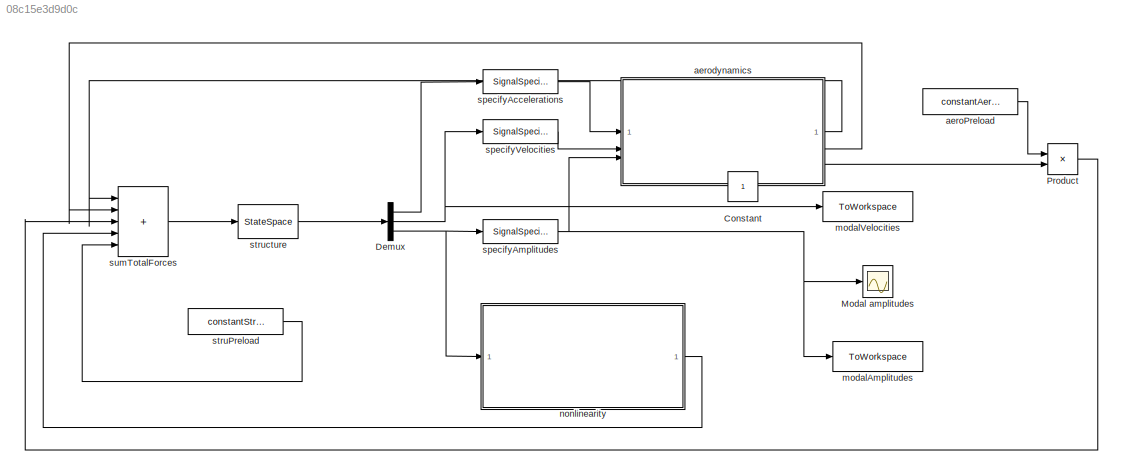
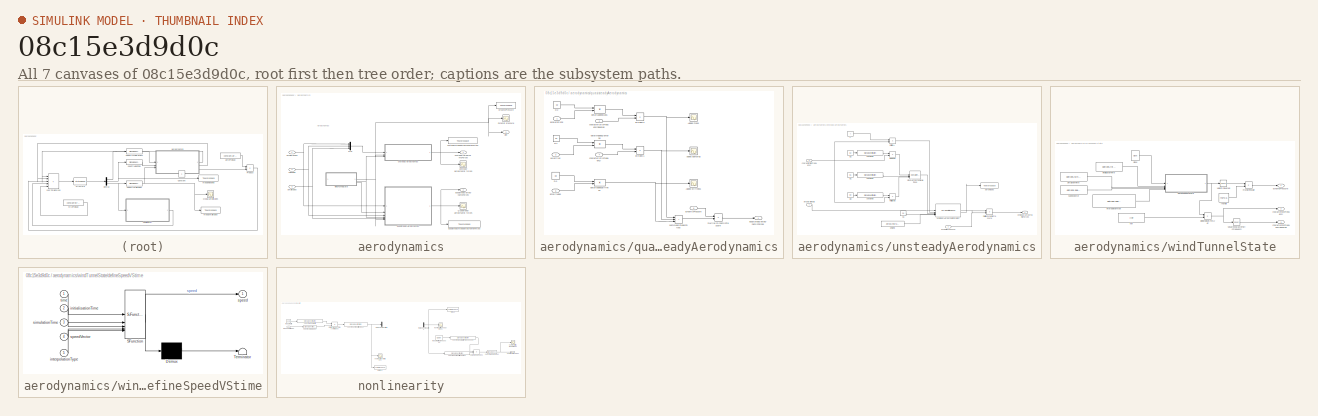
[diagram: thumbnail index - all 7 canvases of the model, root first then tree order]
MODEL slx_08c15e3d9d0c
KIND model
CONFIG AbsTol = auto
CONFIG EnableMultiTasking = off
CONFIG FixedStep = 0.00001
CONFIG MaxStep = 0.001
CONFIG MinStep = auto
CONFIG RelTol = 1e-5
CONFIG SampleTimeConstraint = Unconstrained
CONFIG SolverName = VariableStepAuto
CONFIG StartTime = 0.0
CONFIG StopTime = 100
BLOCK [Constant] Constant
  IOType = siggen
BLOCK [Demux] Demux
  Outputs = 3
BLOCK [Scope] Modal amplitudes
  Floating = off
  NumInputPorts = 1
  ScopeSpecificationString = Simulink.scopes.TimeScopeBlockCfg('CurrentConfiguration', extmgr.ConfigurationSet(extmgr.Configuration('Core','General UI',true),extmgr.Configuration('Core','Source UI',true),extmgr.Configuration('Sources','WiredSimulink',true,'DataLoggingVariableName','Modes'),extmgr.Configuration('Visuals','Time Domain',true,'SerializedDisplays',{struct('MinYLimReal','-0.00024','MaxYLimReal','0.00019','YLabelRea...<+1993ch>
BLOCK [Product] Product
BLOCK [Constant] aeroPreload
  Value = constantAeroForce
BLOCK [SubSystem] aerodynamics
BLOCK [Scope] aerodynamics/Dynamic pressure
  Floating = off
  NumInputPorts = 1
  ScopeSpecificationString = Simulink.scopes.TimeScopeBlockCfg('CurrentConfiguration', extmgr.ConfigurationSet(extmgr.Configuration('Core','General UI',true),extmgr.Configuration('Core','Source UI',true),extmgr.Configuration('Sources','WiredSimulink',true,'DataLoggingVariableName','DynPressure'),extmgr.Configuration('Visuals','Time Domain',true,'SerializedDisplays',{struct('MinYLimReal','104.01297','MaxYLimReal','335.13328','...<+1490ch>
BLOCK [Mux] aerodynamics/Mux
  DisplayOption = bar
  Inputs = 3
BLOCK [Scope] aerodynamics/Quasisteady aerodynamic forces
  Floating = off
  NumInputPorts = 1
  ScopeSpecificationString = Simulink.scopes.TimeScopeBlockCfg('CurrentConfiguration', extmgr.ConfigurationSet(extmgr.Configuration('Core','General UI',true),extmgr.Configuration('Core','Source UI',true),extmgr.Configuration('Sources','WiredSimulink',true,'DataLoggingVariableName','QuasiSteadyAeroForces'),extmgr.Configuration('Visuals','Time Domain',true,'SerializedDisplays',{struct('MinYLimReal','-14305.59124','MaxYLimReal',...<+2057ch>
BLOCK [Scope] aerodynamics/Unsteady aerodynamic forces
  Floating = off
  NumInputPorts = 1
  ScopeSpecificationString = Simulink.scopes.TimeScopeBlockCfg('CurrentConfiguration', extmgr.ConfigurationSet(extmgr.Configuration('Core','General UI',true),extmgr.Configuration('Core','Source UI',true),extmgr.Configuration('Sources','WiredSimulink',true,'DataLoggingVariableName','UnsteadyAeroForces'),extmgr.Configuration('Visuals','Time Domain',true,'SerializedDisplays',{struct('MinYLimReal','-3.00375','MaxYLimReal','3.0336...<+2012ch>
BLOCK [Inport] aerodynamics/accelerations
BLOCK [Inport] aerodynamics/amplitudes
  Port = 3
BLOCK [ToWorkspace] aerodynamics/dynamicPressure
  FixptAsFi = on
  MaxDataPoints = inf
  SampleTime = -1
  Save2DSignal = 2-D array (concatenate along first dimension)
  SaveFormat = Structure
  VariableName = dynamicPressure
BLOCK [Outport] aerodynamics/qinf
  Port = 3
BLOCK [Outport] aerodynamics/quasisteadyAerodynamicForces
  Port = 2
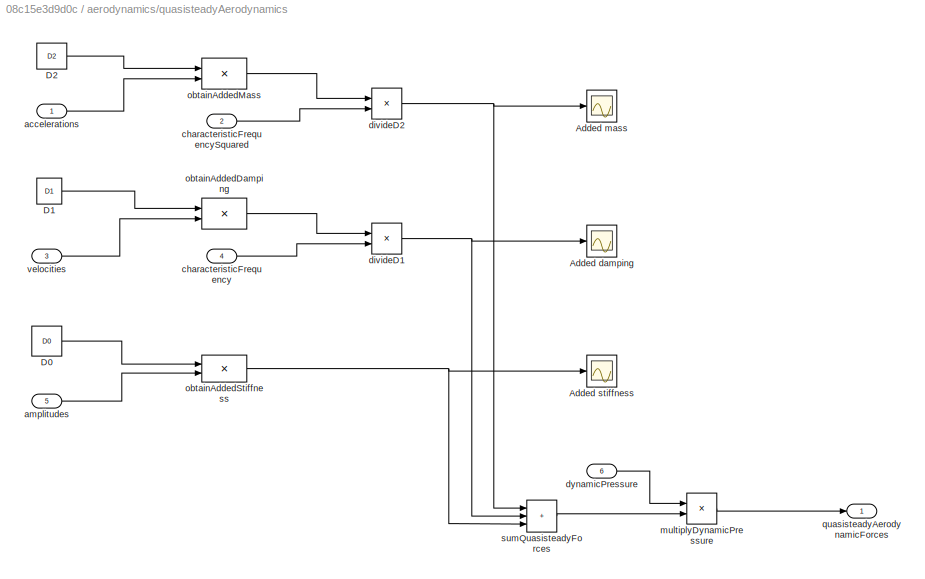
BLOCK [SubSystem] aerodynamics/quasisteadyAerodynamics
BLOCK [Scope] aerodynamics/quasisteadyAerodynamics/Added damping
  Floating = off
  NumInputPorts = 1
  ScopeSpecificationString = Simulink.scopes.TimeScopeBlockCfg('CurrentConfiguration', extmgr.ConfigurationSet(extmgr.Configuration('Core','General UI',true),extmgr.Configuration('Core','Source UI',true),extmgr.Configuration('Sources','WiredSimulink',true,'DataLoggingVariableName','D1AeroForces'),extmgr.Configuration('Visuals','Time Domain',true,'SerializedDisplays',{struct('MinYLimReal','-0.002','MaxYLimReal','0.00194','YLab...<+2005ch>
BLOCK [Scope] aerodynamics/quasisteadyAerodynamics/Added mass
  Floating = off
  NumInputPorts = 1
  ScopeSpecificationString = Simulink.scopes.TimeScopeBlockCfg('CurrentConfiguration', extmgr.ConfigurationSet(extmgr.Configuration('Core','General UI',true),extmgr.Configuration('Core','Source UI',true),extmgr.Configuration('Sources','WiredSimulink',true,'DataLoggingVariableName','D2AeroForces'),extmgr.Configuration('Visuals','Time Domain',true,'SerializedDisplays',{struct('MinYLimReal','-0.00214','MaxYLimReal','0.00214','YL...<+2027ch>
BLOCK [Scope] aerodynamics/quasisteadyAerodynamics/Added stiffness
  Floating = off
  NumInputPorts = 1
  ScopeSpecificationString = Simulink.scopes.TimeScopeBlockCfg('CurrentConfiguration', extmgr.ConfigurationSet(extmgr.Configuration('Core','General UI',true),extmgr.Configuration('Core','Source UI',true),extmgr.Configuration('Sources','WiredSimulink',true,'DataLoggingVariableName','D0AeroForces'),extmgr.Configuration('Visuals','Time Domain',true,'SerializedDisplays',{struct('MinYLimReal','-0.0077','MaxYLimReal','0.00785','YLa...<+2017ch>
BLOCK [Constant] aerodynamics/quasisteadyAerodynamics/D0
  Value = D0
BLOCK [Constant] aerodynamics/quasisteadyAerodynamics/D1
  Value = D1
BLOCK [Constant] aerodynamics/quasisteadyAerodynamics/D2
  Value = D2
BLOCK [Inport] aerodynamics/quasisteadyAerodynamics/accelerations
BLOCK [Inport] aerodynamics/quasisteadyAerodynamics/amplitudes
  Port = 5
BLOCK [Inport] aerodynamics/quasisteadyAerodynamics/characteristicFrequency
  Port = 4
BLOCK [Inport] aerodynamics/quasisteadyAerodynamics/characteristicFrequencySquared
  Port = 2
BLOCK [Product] aerodynamics/quasisteadyAerodynamics/divideD1
  Inputs = */
BLOCK [Product] aerodynamics/quasisteadyAerodynamics/divideD2
  Inputs = */
BLOCK [Inport] aerodynamics/quasisteadyAerodynamics/dynamicPressure
  Port = 6
BLOCK [Product] aerodynamics/quasisteadyAerodynamics/multiplyDynamicPressure
BLOCK [Product] aerodynamics/quasisteadyAerodynamics/obtainAddedDamping
  Multiplication = Matrix(*)
BLOCK [Product] aerodynamics/quasisteadyAerodynamics/obtainAddedMass
  Multiplication = Matrix(*)
BLOCK [Product] aerodynamics/quasisteadyAerodynamics/obtainAddedStiffness
  Multiplication = Matrix(*)
BLOCK [Outport] aerodynamics/quasisteadyAerodynamics/quasisteadyAerodynamicForces
BLOCK [Sum] aerodynamics/quasisteadyAerodynamics/sumQuasisteadyForces
  IconShape = rectangular
  Inputs = +++
BLOCK [Inport] aerodynamics/quasisteadyAerodynamics/velocities
  Port = 3
BLOCK [ToWorkspace] aerodynamics/quasisteadyModalAerodynamicForces
  FixptAsFi = on
  MaxDataPoints = inf
  SampleTime = -1
  Save2DSignal = 2-D array (concatenate along first dimension)
  SaveFormat = Structure
  VariableName = quasisteadyAerodynamicForces
BLOCK [Outport] aerodynamics/unsteadyAerodynamicForces
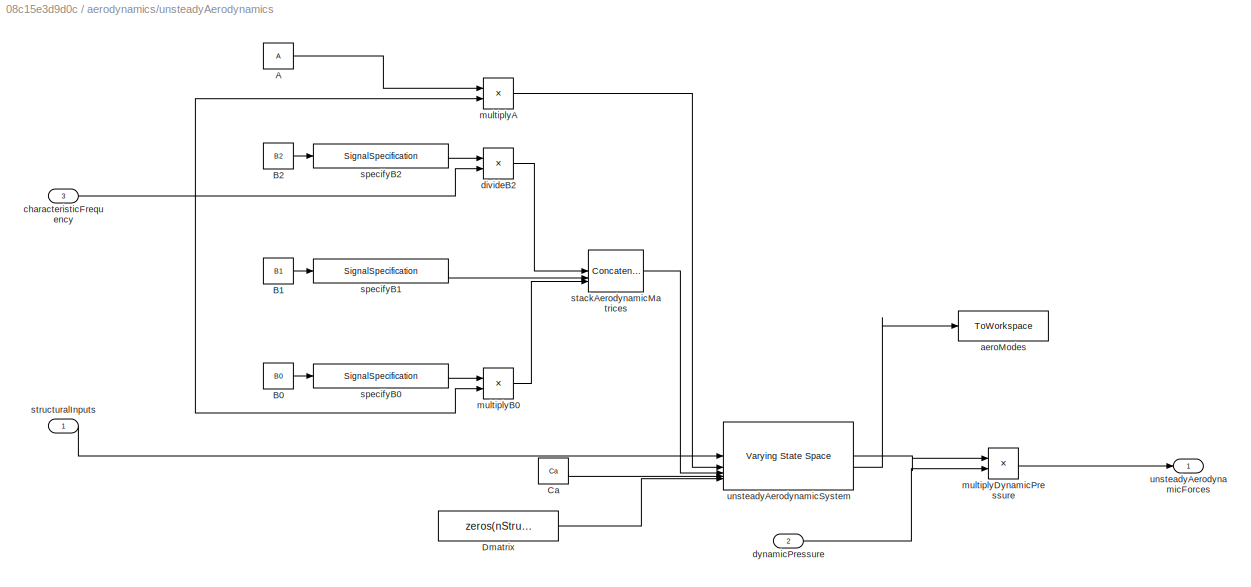
BLOCK [SubSystem] aerodynamics/unsteadyAerodynamics
BLOCK [Constant] aerodynamics/unsteadyAerodynamics/A
  Value = A
BLOCK [Constant] aerodynamics/unsteadyAerodynamics/B0
  Value = B0
BLOCK [Constant] aerodynamics/unsteadyAerodynamics/B1
  Value = B1
BLOCK [Constant] aerodynamics/unsteadyAerodynamics/B2
  Value = B2
BLOCK [Constant] aerodynamics/unsteadyAerodynamics/Ca
  Value = Ca
BLOCK [Constant] aerodynamics/unsteadyAerodynamics/Dmatrix
  Value = zeros(nStru,3*nStru)
BLOCK [ToWorkspace] aerodynamics/unsteadyAerodynamics/aeroModes
  FixptAsFi = on
  MaxDataPoints = 1
  SampleTime = -1
  Save2DSignal = 2-D array (concatenate along first dimension)
  SaveFormat = Structure
  VariableName = modesAero
BLOCK [Inport] aerodynamics/unsteadyAerodynamics/characteristicFrequency
  Port = 3
BLOCK [Product] aerodynamics/unsteadyAerodynamics/divideB2
  Inputs = */
BLOCK [Inport] aerodynamics/unsteadyAerodynamics/dynamicPressure
  Port = 2
BLOCK [Product] aerodynamics/unsteadyAerodynamics/multiplyA
  Inputs = **
BLOCK [Product] aerodynamics/unsteadyAerodynamics/multiplyB0
  Inputs = **
BLOCK [Product] aerodynamics/unsteadyAerodynamics/multiplyDynamicPressure
BLOCK [SignalSpecification] aerodynamics/unsteadyAerodynamics/specifyB0
  Dimensions = [nAero,nStru]
  VarSizeSig = No
BLOCK [SignalSpecification] aerodynamics/unsteadyAerodynamics/specifyB1
  Dimensions = [nAero,nStru]
  VarSizeSig = No
BLOCK [SignalSpecification] aerodynamics/unsteadyAerodynamics/specifyB2
  Dimensions = [nAero,nStru]
  VarSizeSig = No
BLOCK [Concatenate] aerodynamics/unsteadyAerodynamics/stackAerodynamicMatrices
  ConcatenateDimension = 2
  Mode = Multidimensional array
  NumInputs = 3
BLOCK [Inport] aerodynamics/unsteadyAerodynamics/structuralInputs
BLOCK [Outport] aerodynamics/unsteadyAerodynamics/unsteadyAerodynamicForces
BLOCK [Reference] aerodynamics/unsteadyAerodynamics/unsteadyAerodynamicSystem  REF=cstblocks/Linear Parameter Varying/Varying State Space
  SourceBlock = cstblocks/Linear Parameter Varying/Varying State Space
  SourceType = Varying State Space
BLOCK [ToWorkspace] aerodynamics/unsteadyModalAerodyanamicForces
  FixptAsFi = on
  MaxDataPoints = inf
  SampleTime = -1
  Save2DSignal = 2-D array (concatenate along first dimension)
  SaveFormat = Structure
  VariableName = unsteadyAerodynamicForces
BLOCK [Inport] aerodynamics/velocities
  Port = 2
BLOCK [SubSystem] aerodynamics/windTunnelState
BLOCK [Clock] aerodynamics/windTunnelState/Clock
BLOCK [Outport] aerodynamics/windTunnelState/characteristicFrequency
  Port = 2
BLOCK [Outport] aerodynamics/windTunnelState/characteristicFrequencySquared
  Port = 3
BLOCK [SubSystem] aerodynamics/windTunnelState/defineSpeedVStime
  ErrorFcn = Stateflow.Translate.translate
  PermitHierarchicalResolution = ExplicitOnly
  SFBlockType = MATLAB Function
  TreatAsAtomicUnit = on
BLOCK [Demux] aerodynamics/windTunnelState/defineSpeedVStime/ Demux 
  Outputs = 1
BLOCK [S-Function] aerodynamics/windTunnelState/defineSpeedVStime/ SFunction 
  EnableBusSupport = off
  FunctionName = sf_sfun
  PortCounts = [5 2]
  SFcnIsStateOwnerBlock = off
  SFunctionDeploymentMode = off
  Tag = Stateflow S-Function 2
BLOCK [Terminator] aerodynamics/windTunnelState/defineSpeedVStime/ Terminator 
BLOCK [Inport] aerodynamics/windTunnelState/defineSpeedVStime/initialisationTime
  Port = 2
BLOCK [Inport] aerodynamics/windTunnelState/defineSpeedVStime/interpolationType
  Port = 5
BLOCK [Inport] aerodynamics/windTunnelState/defineSpeedVStime/simulationTime
  Port = 3
BLOCK [Outport] aerodynamics/windTunnelState/defineSpeedVStime/speed
BLOCK [Inport] aerodynamics/windTunnelState/defineSpeedVStime/speedVector
  Port = 4
BLOCK [Inport] aerodynamics/windTunnelState/defineSpeedVStime/time
BLOCK [Product] aerodynamics/windTunnelState/divideVelocityForLref
  Inputs = */
BLOCK [Outport] aerodynamics/windTunnelState/dynamicPressure
BLOCK [Constant] aerodynamics/windTunnelState/initialisationTime
  Value = options.initialisationTime
BLOCK [Constant] aerodynamics/windTunnelState/interpolationType
  Value = options.speedInterpolationType
BLOCK [Constant] aerodynamics/windTunnelState/lref
  Value = lref
BLOCK [Product] aerodynamics/windTunnelState/mutiplyRhoHalf
BLOCK [Constant] aerodynamics/windTunnelState/rhoHalf
  Value = rho*0.5
BLOCK [Constant] aerodynamics/windTunnelState/simulationTime
  Value = options.simulationTime
BLOCK [Constant] aerodynamics/windTunnelState/speedVector
  Value = options.speedVector
BLOCK [Math] aerodynamics/windTunnelState/squareCharacteristicFrequency
  Operator = square
BLOCK [Math] aerodynamics/windTunnelState/velocitySquared
  Operator = square
BLOCK [ToWorkspace] modalAmplitudes
  FixptAsFi = on
  MaxDataPoints = inf
  SampleTime = -1
  Save2DSignal = 2-D array (concatenate along first dimension)
  SaveFormat = Structure
  VariableName = modes
BLOCK [ToWorkspace] modalVelocities
  FixptAsFi = on
  MaxDataPoints = 1
  SampleTime = -1
  Save2DSignal = 2-D array (concatenate along first dimension)
  SaveFormat = Structure
  VariableName = modesVelocity
BLOCK [SubSystem] nonlinearity
BLOCK [Scope] nonlinearity/Nonlinearities modal forces
  Floating = off
  NumInputPorts = 1
  ScopeSpecificationString = Simulink.scopes.TimeScopeBlockCfg('CurrentConfiguration', extmgr.ConfigurationSet(extmgr.Configuration('Core','General UI',true),extmgr.Configuration('Core','Source UI',true),extmgr.Configuration('Sources','WiredSimulink',true,'DataLoggingVariableName','VectorialNonlinearForces'),extmgr.Configuration('Visuals','Time Domain',true,'SerializedDisplays',{struct('MinYLimReal','-44.30114','MaxYLimReal',...<+2022ch>
BLOCK [Scope] nonlinearity/Nonlinearities nodal forces
  Floating = off
  NumInputPorts = 1
  ScopeSpecificationString = Simulink.scopes.TimeScopeBlockCfg('CurrentConfiguration', extmgr.ConfigurationSet(extmgr.Configuration('Core','General UI',true),extmgr.Configuration('Core','Source UI',true),extmgr.Configuration('Sources','WiredSimulink',true,'DataLoggingVariableName','ScalarNonlinearForces'),extmgr.Configuration('Visuals','Time Domain',true,'SerializedDisplays',{struct('MinYLimReal','-0.01948','MaxYLimReal','0.0...<+1937ch>
BLOCK [Demux] nonlinearity/divideNonlinearities
  Outputs = 2
BLOCK [Mux] nonlinearity/mergeNonlinearities
  DisplayOption = bar
  Inputs = 2
BLOCK [Inport] nonlinearity/modalAmplitudes
BLOCK [Constant] nonlinearity/modalMatrix
  Value = Ugap
BLOCK [Constant] nonlinearity/modalMatrixTransposed
  Value = Ugap'
BLOCK [Product] nonlinearity/multiplyModesTimesAmplitudes
  Multiplication = Matrix(*)
BLOCK [Scope] nonlinearity/nonlinearityAmplitudes
  Floating = off
  NumInputPorts = 1
  ScopeSpecificationString = Simulink.scopes.TimeScopeBlockCfg('CurrentConfiguration', extmgr.ConfigurationSet(extmgr.Configuration('Core','General UI',true),extmgr.Configuration('Core','Source UI',true),extmgr.Configuration('Sources','WiredSimulink',true,'DataLoggingVariableName','Rotation'),extmgr.Configuration('Visuals','Time Domain',true,'SerializedDisplays',{struct('MinYLimReal','-0.00211','MaxYLimReal','0.00217','YLabel...<+1586ch>
BLOCK [Outport] nonlinearity/nonlinearityForces
BLOCK [Product] nonlinearity/obtainModalForces
  Multiplication = Matrix(*)
BLOCK [ToWorkspace] nonlinearity/rotations
  FixptAsFi = on
  MaxDataPoints = inf
  SampleTime = -1
  SaveFormat = Structure With Time
  VariableName = rotationInTime
BLOCK [SignalSpecification] nonlinearity/specifyAmplutudes
  Dimensions = [nStru,1]
  VarSizeSig = No
BLOCK [SignalSpecification] nonlinearity/specifyModalForces
  Dimensions = nStru
  VarSizeSig = No
BLOCK [SignalSpecification] nonlinearity/specifyModalMatrix
  Dimensions = [size(options.gapPoints,1),nStru]
  VarSizeSig = No
BLOCK [SignalSpecification] nonlinearity/specifyModalMatrixTransposed
  Dimensions = [nStru,size(options.gapPoints,1)]
  VarSizeSig = No
BLOCK [SignalSpecification] nonlinearity/specifyNonlinearitiesInput
  Dimensions = size(options.gapPoints,1)
  VarSizeSig = No
BLOCK [SignalSpecification] nonlinearity/specifyNonlinearitiesOutput
  Dimensions = [size(options.gapPoints,1),1]
  VarSizeSig = No
BLOCK [ToWorkspace] nonlinearity/torque
  FixptAsFi = on
  MaxDataPoints = inf
  SampleTime = -1
  SaveFormat = Structure With Time
  VariableName = torque
BLOCK [SignalSpecification] specifyAccelerations
  Dimensions = nStru
  VarSizeSig = No
BLOCK [SignalSpecification] specifyAmplitudes
  Dimensions = nStru
  VarSizeSig = No
BLOCK [SignalSpecification] specifyVelocities
  Dimensions = nStru
  VarSizeSig = No
BLOCK [Constant] struPreload
  Value = constantStruForce
BLOCK [StateSpace] structure
  A = [-invMC -invMK; eye(nStru) zeros(nStru)]
  B = [inv(Mhh);zeros(nStru)]
  C = [-invMC -invMK;eye(nStru) zeros(nStru);zeros(nStru) eye(nStru)]
  D = [inv(Mhh);zeros(nStru);zeros(nStru)]
  InitialCondition = qInitial
BLOCK [Sum] sumTotalForces
  IconShape = rectangular
  Inputs = +++++
ANNOTATION aerodynamics: Aerodynamics
LINE Demux:1 -> specifyAccelerations:1
NET Demux:2 -> modalVelocities:1, specifyVelocities:1
NET Demux:3 -> nonlinearity:1, specifyAmplitudes:1
LINE Product:1 -> sumTotalForces:3
LINE aeroPreload:1 -> Product:1
LINE aerodynamics/Mux:1 -> aerodynamics/unsteadyAerodynamics:1
NET aerodynamics/accelerations:1 -> aerodynamics/Mux:1, aerodynamics/quasisteadyAerodynamics:1
NET aerodynamics/amplitudes:1 -> aerodynamics/Mux:3, aerodynamics/quasisteadyAerodynamics:5
LINE aerodynamics/quasisteadyAerodynamics/D0:1 -> aerodynamics/quasisteadyAerodynamics/obtainAddedStiffness:1
LINE aerodynamics/quasisteadyAerodynamics/D1:1 -> aerodynamics/quasisteadyAerodynamics/obtainAddedDamping:1
LINE aerodynamics/quasisteadyAerodynamics/D2:1 -> aerodynamics/quasisteadyAerodynamics/obtainAddedMass:1
LINE aerodynamics/quasisteadyAerodynamics/accelerations:1 -> aerodynamics/quasisteadyAerodynamics/obtainAddedMass:2
LINE aerodynamics/quasisteadyAerodynamics/amplitudes:1 -> aerodynamics/quasisteadyAerodynamics/obtainAddedStiffness:2
LINE aerodynamics/quasisteadyAerodynamics/characteristicFrequency:1 -> aerodynamics/quasisteadyAerodynamics/divideD1:2
LINE aerodynamics/quasisteadyAerodynamics/characteristicFrequencySquared:1 -> aerodynamics/quasisteadyAerodynamics/divideD2:2
NET aerodynamics/quasisteadyAerodynamics/divideD1:1 -> aerodynamics/quasisteadyAerodynamics/Added damping:1, aerodynamics/quasisteadyAerodynamics/sumQuasisteadyForces:2
NET aerodynamics/quasisteadyAerodynamics/divideD2:1 -> aerodynamics/quasisteadyAerodynamics/Added mass:1, aerodynamics/quasisteadyAerodynamics/sumQuasisteadyForces:1
LINE aerodynamics/quasisteadyAerodynamics/dynamicPressure:1 -> aerodynamics/quasisteadyAerodynamics/multiplyDynamicPressure:1
LINE aerodynamics/quasisteadyAerodynamics/multiplyDynamicPressure:1 -> aerodynamics/quasisteadyAerodynamics/quasisteadyAerodynamicForces:1
LINE aerodynamics/quasisteadyAerodynamics/obtainAddedDamping:1 -> aerodynamics/quasisteadyAerodynamics/divideD1:1
LINE aerodynamics/quasisteadyAerodynamics/obtainAddedMass:1 -> aerodynamics/quasisteadyAerodynamics/divideD2:1
NET aerodynamics/quasisteadyAerodynamics/obtainAddedStiffness:1 -> aerodynamics/quasisteadyAerodynamics/Added stiffness:1, aerodynamics/quasisteadyAerodynamics/sumQuasisteadyForces:3
LINE aerodynamics/quasisteadyAerodynamics/sumQuasisteadyForces:1 -> aerodynamics/quasisteadyAerodynamics/multiplyDynamicPressure:2
LINE aerodynamics/quasisteadyAerodynamics/velocities:1 -> aerodynamics/quasisteadyAerodynamics/obtainAddedDamping:2
NET aerodynamics/quasisteadyAerodynamics:1 -> aerodynamics/Quasisteady aerodynamic forces:1, aerodynamics/quasisteadyAerodynamicForces:1, aerodynamics/quasisteadyModalAerodynamicForces:1
LINE aerodynamics/unsteadyAerodynamics/A:1 -> aerodynamics/unsteadyAerodynamics/multiplyA:1
LINE aerodynamics/unsteadyAerodynamics/B0:1 -> aerodynamics/unsteadyAerodynamics/specifyB0:1
LINE aerodynamics/unsteadyAerodynamics/B1:1 -> aerodynamics/unsteadyAerodynamics/specifyB1:1
LINE aerodynamics/unsteadyAerodynamics/B2:1 -> aerodynamics/unsteadyAerodynamics/specifyB2:1
LINE aerodynamics/unsteadyAerodynamics/Ca:1 -> aerodynamics/unsteadyAerodynamics/unsteadyAerodynamicSystem:4
LINE aerodynamics/unsteadyAerodynamics/Dmatrix:1 -> aerodynamics/unsteadyAerodynamics/unsteadyAerodynamicSystem:5
NET aerodynamics/unsteadyAerodynamics/characteristicFrequency:1 -> aerodynamics/unsteadyAerodynamics/divideB2:2, aerodynamics/unsteadyAerodynamics/multiplyA:2, aerodynamics/unsteadyAerodynamics/multiplyB0:2
LINE aerodynamics/unsteadyAerodynamics/divideB2:1 -> aerodynamics/unsteadyAerodynamics/stackAerodynamicMatrices:1
LINE aerodynamics/unsteadyAerodynamics/dynamicPressure:1 -> aerodynamics/unsteadyAerodynamics/multiplyDynamicPressure:2
LINE aerodynamics/unsteadyAerodynamics/multiplyA:1 -> aerodynamics/unsteadyAerodynamics/unsteadyAerodynamicSystem:2
LINE aerodynamics/unsteadyAerodynamics/multiplyB0:1 -> aerodynamics/unsteadyAerodynamics/stackAerodynamicMatrices:3
LINE aerodynamics/unsteadyAerodynamics/multiplyDynamicPressure:1 -> aerodynamics/unsteadyAerodynamics/unsteadyAerodynamicForces:1
LINE aerodynamics/unsteadyAerodynamics/specifyB0:1 -> aerodynamics/unsteadyAerodynamics/multiplyB0:1
LINE aerodynamics/unsteadyAerodynamics/specifyB1:1 -> aerodynamics/unsteadyAerodynamics/stackAerodynamicMatrices:2
LINE aerodynamics/unsteadyAerodynamics/specifyB2:1 -> aerodynamics/unsteadyAerodynamics/divideB2:1
LINE aerodynamics/unsteadyAerodynamics/stackAerodynamicMatrices:1 -> aerodynamics/unsteadyAerodynamics/unsteadyAerodynamicSystem:3
LINE aerodynamics/unsteadyAerodynamics/structuralInputs:1 -> aerodynamics/unsteadyAerodynamics/unsteadyAerodynamicSystem:1
LINE aerodynamics/unsteadyAerodynamics/unsteadyAerodynamicSystem:1 -> aerodynamics/unsteadyAerodynamics/multiplyDynamicPressure:1
LINE aerodynamics/unsteadyAerodynamics/unsteadyAerodynamicSystem:2 -> aerodynamics/unsteadyAerodynamics/aeroModes:1
NET aerodynamics/unsteadyAerodynamics:1 -> aerodynamics/Unsteady aerodynamic forces:1, aerodynamics/unsteadyAerodynamicForces:1, aerodynamics/unsteadyModalAerodyanamicForces:1
NET aerodynamics/velocities:1 -> aerodynamics/Mux:2, aerodynamics/quasisteadyAerodynamics:3
LINE aerodynamics/windTunnelState/Clock:1 -> aerodynamics/windTunnelState/defineSpeedVStime:1
NET aerodynamics/windTunnelState/defineSpeedVStime:1 -> aerodynamics/windTunnelState/divideVelocityForLref:1, aerodynamics/windTunnelState/velocitySquared:1
NET aerodynamics/windTunnelState/divideVelocityForLref:1 -> aerodynamics/windTunnelState/characteristicFrequency:1, aerodynamics/windTunnelState/squareCharacteristicFrequency:1
LINE aerodynamics/windTunnelState/initialisationTime:1 -> aerodynamics/windTunnelState/defineSpeedVStime:2
LINE aerodynamics/windTunnelState/interpolationType:1 -> aerodynamics/windTunnelState/defineSpeedVStime:5
LINE aerodynamics/windTunnelState/lref:1 -> aerodynamics/windTunnelState/divideVelocityForLref:2
LINE aerodynamics/windTunnelState/mutiplyRhoHalf:1 -> aerodynamics/windTunnelState/dynamicPressure:1
LINE aerodynamics/windTunnelState/rhoHalf:1 -> aerodynamics/windTunnelState/mutiplyRhoHalf:2
LINE aerodynamics/windTunnelState/simulationTime:1 -> aerodynamics/windTunnelState/defineSpeedVStime:3
LINE aerodynamics/windTunnelState/speedVector:1 -> aerodynamics/windTunnelState/defineSpeedVStime:4
LINE aerodynamics/windTunnelState/squareCharacteristicFrequency:1 -> aerodynamics/windTunnelState/characteristicFrequencySquared:1
LINE aerodynamics/windTunnelState/velocitySquared:1 -> aerodynamics/windTunnelState/mutiplyRhoHalf:1
NET aerodynamics/windTunnelState:1 -> aerodynamics/Dynamic pressure:1, aerodynamics/dynamicPressure:1, aerodynamics/qinf:1, aerodynamics/quasisteadyAerodynamics:6, aerodynamics/unsteadyAerodynamics:2
NET aerodynamics/windTunnelState:2 -> aerodynamics/quasisteadyAerodynamics:4, aerodynamics/unsteadyAerodynamics:3
LINE aerodynamics/windTunnelState:3 -> aerodynamics/quasisteadyAerodynamics:2
LINE aerodynamics:1 -> sumTotalForces:1
LINE aerodynamics:2 -> sumTotalForces:2
LINE aerodynamics:3 -> Product:2
NET nonlinearity/mergeNonlinearities:1 -> nonlinearity/Nonlinearities nodal forces:1, nonlinearity/specifyNonlinearitiesOutput:1, nonlinearity/torque:1
LINE nonlinearity/modalAmplitudes:1 -> nonlinearity/specifyAmplutudes:1
LINE nonlinearity/modalMatrix:1 -> nonlinearity/specifyModalMatrix:1
LINE nonlinearity/modalMatrixTransposed:1 -> nonlinearity/specifyModalMatrixTransposed:1
LINE nonlinearity/multiplyModesTimesAmplitudes:1 -> nonlinearity/specifyNonlinearitiesInput:1
LINE nonlinearity/obtainModalForces:1 -> nonlinearity/specifyModalForces:1
LINE nonlinearity/specifyAmplutudes:1 -> nonlinearity/multiplyModesTimesAmplitudes:2
NET nonlinearity/specifyModalForces:1 -> nonlinearity/Nonlinearities modal forces:1, nonlinearity/nonlinearityForces:1
LINE nonlinearity/specifyModalMatrix:1 -> nonlinearity/multiplyModesTimesAmplitudes:1
LINE nonlinearity/specifyModalMatrixTransposed:1 -> nonlinearity/obtainModalForces:1
NET nonlinearity/specifyNonlinearitiesInput:1 -> nonlinearity/divideNonlinearities:1, nonlinearity/nonlinearityAmplitudes:1, nonlinearity/rotations:1
LINE nonlinearity/specifyNonlinearitiesOutput:1 -> nonlinearity/obtainModalForces:2
LINE nonlinearity:1 -> sumTotalForces:4
LINE specifyAccelerations:1 -> aerodynamics:1
NET specifyAmplitudes:1 -> Modal amplitudes:1, aerodynamics:3, modalAmplitudes:1
LINE specifyVelocities:1 -> aerodynamics:2
LINE struPreload:1 -> sumTotalForces:5
LINE structure:1 -> Demux:1
LINE sumTotalForces:1 -> structure:1
note: NET lines group one-source signal fan-out (src -> all destinations, sorted); 1:1 wires keep LINE
CHART aerodynamics/windTunnelState/defineSpeedVStime states=1 transitions=1
  STATE_LABEL 'eML_blk_kernel()'
  STATE_LABEL "SCRIPT:\nfunction speed = fcn(time,initialisationTime,simulationTime,speedVector,interpolationType  )\n\n\nif time<=initialisationTime || length(speedVector)==1\n    speed = speedVector(1);\nelse\n    if interpolationType==0\n        speed = interp1(linspace(initialisationTime,simulationTime...\n            ,length(speedVector)+1),[speedVector; speedVector(end)],time,'previous');\n    elseif interpolationTy...<+300ch>"
CHART  states=0 transitions=0
